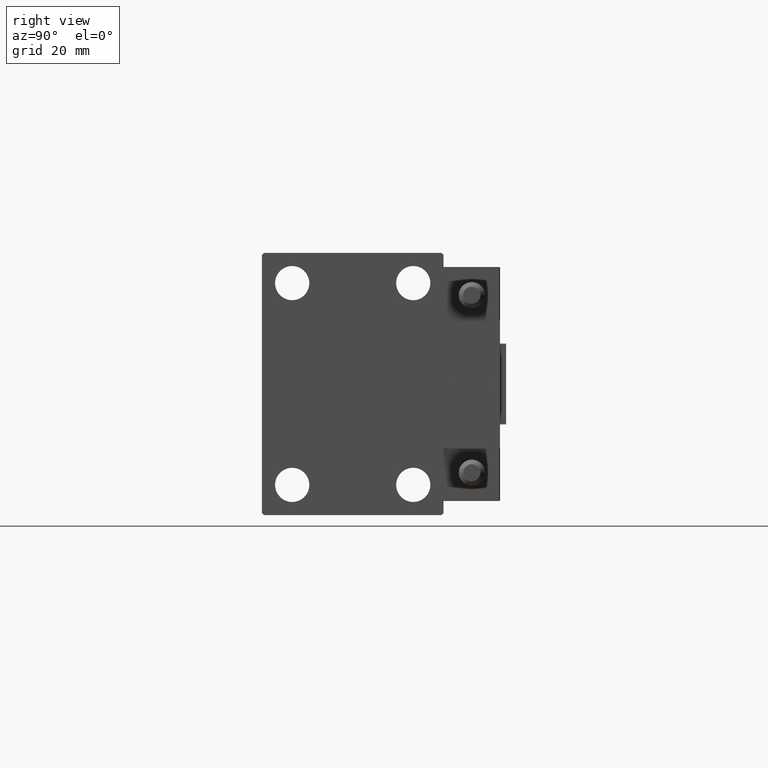
[diagram: clean part render]
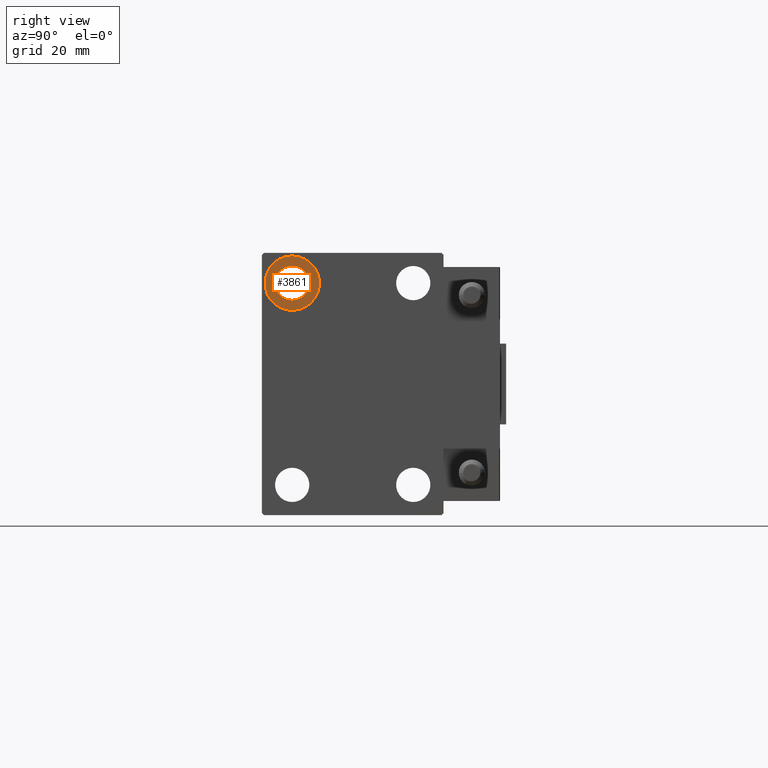
[diagram: same view with one face highlighted and labeled with its STEP entity id]
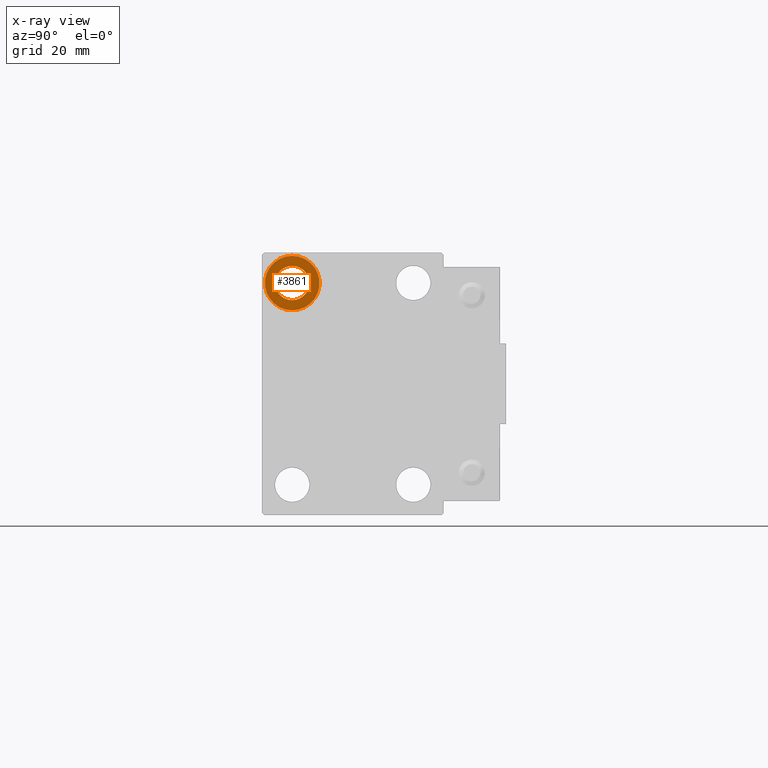
[diagram: x-ray of the same camera — body ghosted, the highlighted face saturated]
A machine part, right view. The second image highlights one B-rep face of the part: STEP entity #3861.
The next image is the same camera in x-ray: the body ghosted, the highlighted face saturated — about 0% of this face is hidden behind the body in this view.
In plain terms, the highlighted planar face has unit normal (1, 0, 0).
Its self-contained STEP definition (entity closure, byte-faithful):
#137 = DIRECTION ( 'NONE',  ( -1.000000000000000000, -0.000000000000000000, -0.000000000000000000 ) ) ;
#1959 = EDGE_LOOP ( 'NONE', ( #24011, #46985 ) ) ;
#2394 = EDGE_CURVE ( 'NONE', #6776, #27556, #24033, .T. ) ;
#2405 = CARTESIAN_POINT ( 'NONE',  ( 51.00000000000000000, -14.99999999999999645, 20.75000000000000355 ) ) ;
#2591 = DIRECTION ( 'NONE',  ( 0.000000000000000000, 0.000000000000000000, -1.000000000000000000 ) ) ;
#3861 = ADVANCED_FACE ( 'NONE', ( #29507, #9883 ), #25645, .T. ) ;
#4259 = DIRECTION ( 'NONE',  ( 0.000000000000000000, 0.000000000000000000, -1.000000000000000000 ) ) ;
#6003 = DIRECTION ( 'NONE',  ( 1.000000000000000000, 0.000000000000000000, -0.000000000000000000 ) ) ;
#6776 = VERTEX_POINT ( 'NONE', #21103 ) ;
#7487 = DIRECTION ( 'NONE',  ( 0.000000000000000000, 0.000000000000000000, 1.000000000000000000 ) ) ;
#8150 = CARTESIAN_POINT ( 'NONE',  ( 51.00000000000000000, -14.99999999999999645, 25.00000000000000000 ) ) ;
#9883 = FACE_BOUND ( 'NONE', #1959, .T. ) ;
#10430 = EDGE_LOOP ( 'NONE', ( #18794, #32608 ) ) ;
#11238 = AXIS2_PLACEMENT_3D ( 'NONE', #8150, #16155, #4259 ) ;
#15486 = DIRECTION ( 'NONE',  ( -1.000000000000000000, -0.000000000000000000, -0.000000000000000000 ) ) ;
#15899 = DIRECTION ( 'NONE',  ( 0.000000000000000000, 0.000000000000000000, 1.000000000000000000 ) ) ;
#16155 = DIRECTION ( 'NONE',  ( -1.000000000000000000, -0.000000000000000000, -0.000000000000000000 ) ) ;
#17378 = EDGE_CURVE ( 'NONE', #46414, #22729, #27751, .T. ) ;
#18794 = ORIENTED_EDGE ( 'NONE', *, *, #2394, .F. ) ;
#20750 = AXIS2_PLACEMENT_3D ( 'NONE', #41405, #6003, #21768 ) ;
#21103 = CARTESIAN_POINT ( 'NONE',  ( 51.00000000000000000, -14.99999999999999645, 18.25000000000000355 ) ) ;
#21768 = DIRECTION ( 'NONE',  ( 0.000000000000000000, 0.000000000000000000, 1.000000000000000000 ) ) ;
#22442 = CIRCLE ( 'NONE', #45522, 6.749999999999999112 ) ;
#22729 = VERTEX_POINT ( 'NONE', #27749 ) ;
#24011 = ORIENTED_EDGE ( 'NONE', *, *, #26919, .T. ) ;
#24033 = CIRCLE ( 'NONE', #33927, 6.749999999999999112 ) ;
#25645 = PLANE ( 'NONE',  #20750 ) ;
#26368 = CARTESIAN_POINT ( 'NONE',  ( 51.00000000000000000, -14.99999999999999645, 25.00000000000000000 ) ) ;
#26919 = EDGE_CURVE ( 'NONE', #22729, #46414, #51027, .T. ) ;
#27556 = VERTEX_POINT ( 'NONE', #43366 ) ;
#27749 = CARTESIAN_POINT ( 'NONE',  ( 51.00000000000000000, -14.99999999999999645, 29.25000000000000000 ) ) ;
#27751 = CIRCLE ( 'NONE', #11238, 4.249999999999996447 ) ;
#29507 = FACE_OUTER_BOUND ( 'NONE', #10430, .T. ) ;
#29561 = AXIS2_PLACEMENT_3D ( 'NONE', #26368, #29979, #2591 ) ;
#29979 = DIRECTION ( 'NONE',  ( -1.000000000000000000, -0.000000000000000000, -0.000000000000000000 ) ) ;
#32608 = ORIENTED_EDGE ( 'NONE', *, *, #38218, .F. ) ;
#33927 = AXIS2_PLACEMENT_3D ( 'NONE', #35547, #137, #15899 ) ;
#35547 = CARTESIAN_POINT ( 'NONE',  ( 51.00000000000000000, -14.99999999999999645, 25.00000000000000000 ) ) ;
#38218 = EDGE_CURVE ( 'NONE', #27556, #6776, #22442, .T. ) ;
#38749 = CARTESIAN_POINT ( 'NONE',  ( 51.00000000000000000, -14.99999999999999645, 25.00000000000000000 ) ) ;
#41405 = CARTESIAN_POINT ( 'NONE',  ( 51.00000000000000000, 0.000000000000000000, 0.000000000000000000 ) ) ;
#43366 = CARTESIAN_POINT ( 'NONE',  ( 51.00000000000000000, -14.99999999999999645, 31.75000000000000000 ) ) ;
#45522 = AXIS2_PLACEMENT_3D ( 'NONE', #38749, #15486, #7487 ) ;
#46414 = VERTEX_POINT ( 'NONE', #2405 ) ;
#46985 = ORIENTED_EDGE ( 'NONE', *, *, #17378, .T. ) ;
#51027 = CIRCLE ( 'NONE', #29561, 4.249999999999996447 ) ;